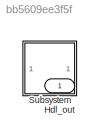
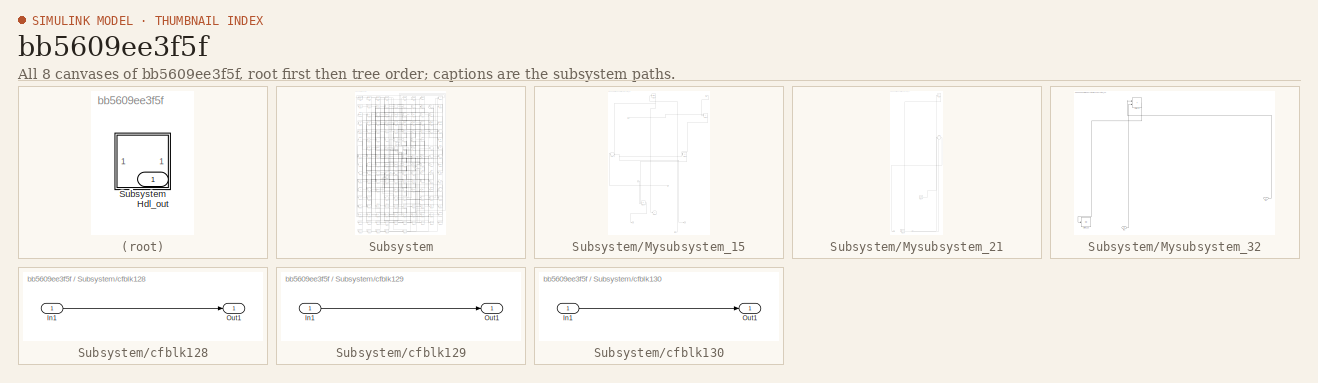
[diagram: thumbnail index - all 8 canvases of the model, root first then tree order]
MODEL slx_bb5609ee3f5f
KIND model
CONFIG AbsTol = auto
CONFIG EnableMultiTasking = off
CONFIG FixedStep = auto
CONFIG MaxStep = auto
CONFIG MinStep = auto
CONFIG RelTol = 1e-3
CONFIG SampleTimeConstraint = Unconstrained
CONFIG SolverName = VariableStepAuto
CONFIG StartTime = 0.0
CONFIG StopTime = 10.0
BLOCK [Outport] Hdl_out
  OutDataTypeStr = uint8
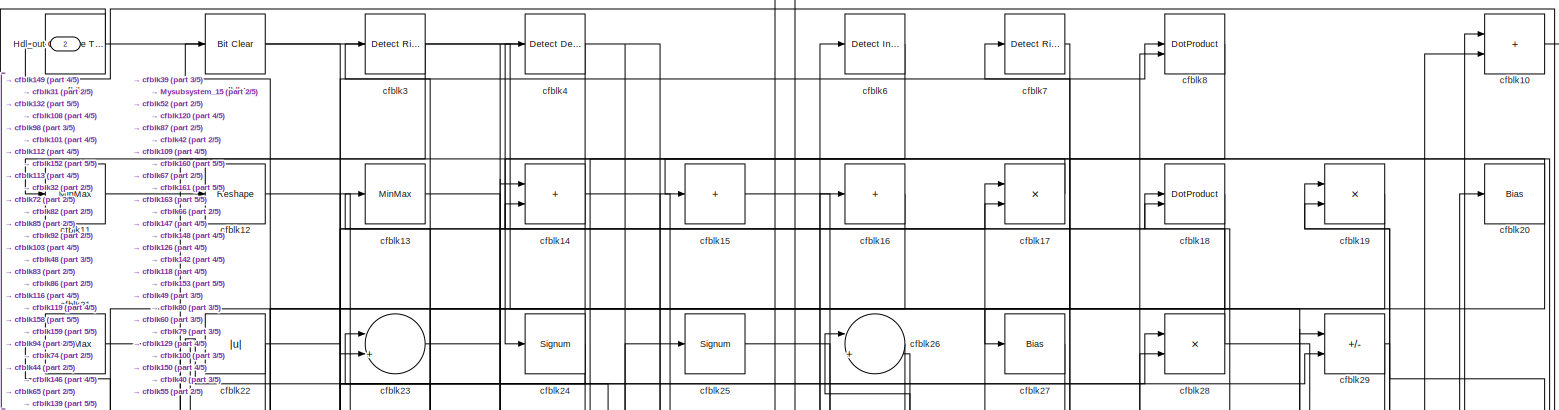
[diagram: Subsystem - part 1/5, full width, top band]
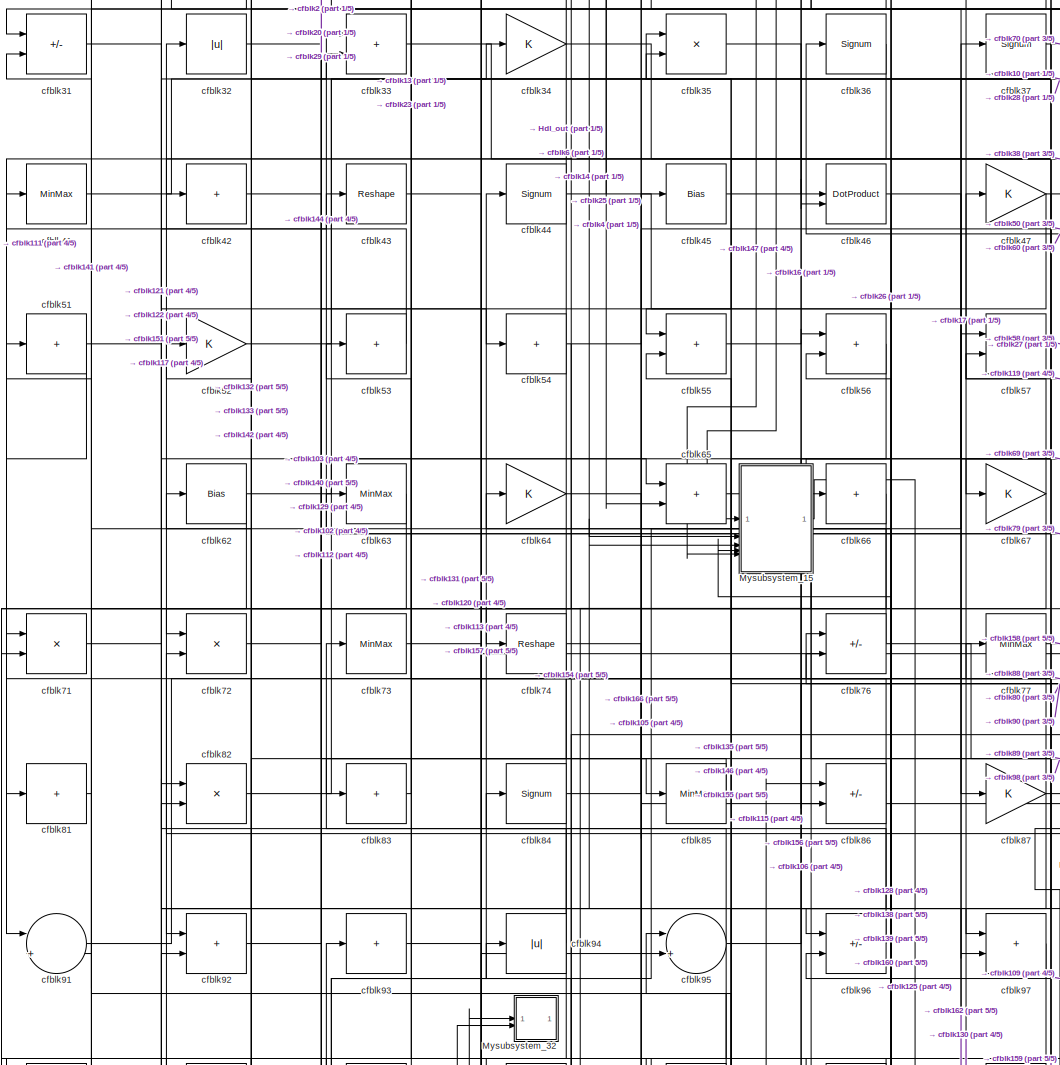
[diagram: Subsystem - part 2/5, central region]
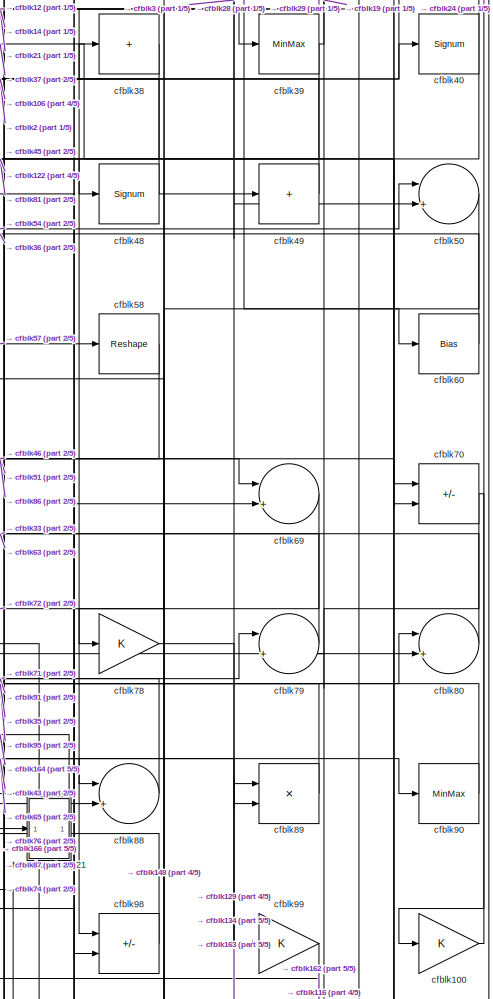
[diagram: Subsystem - part 3/5, middle right region]
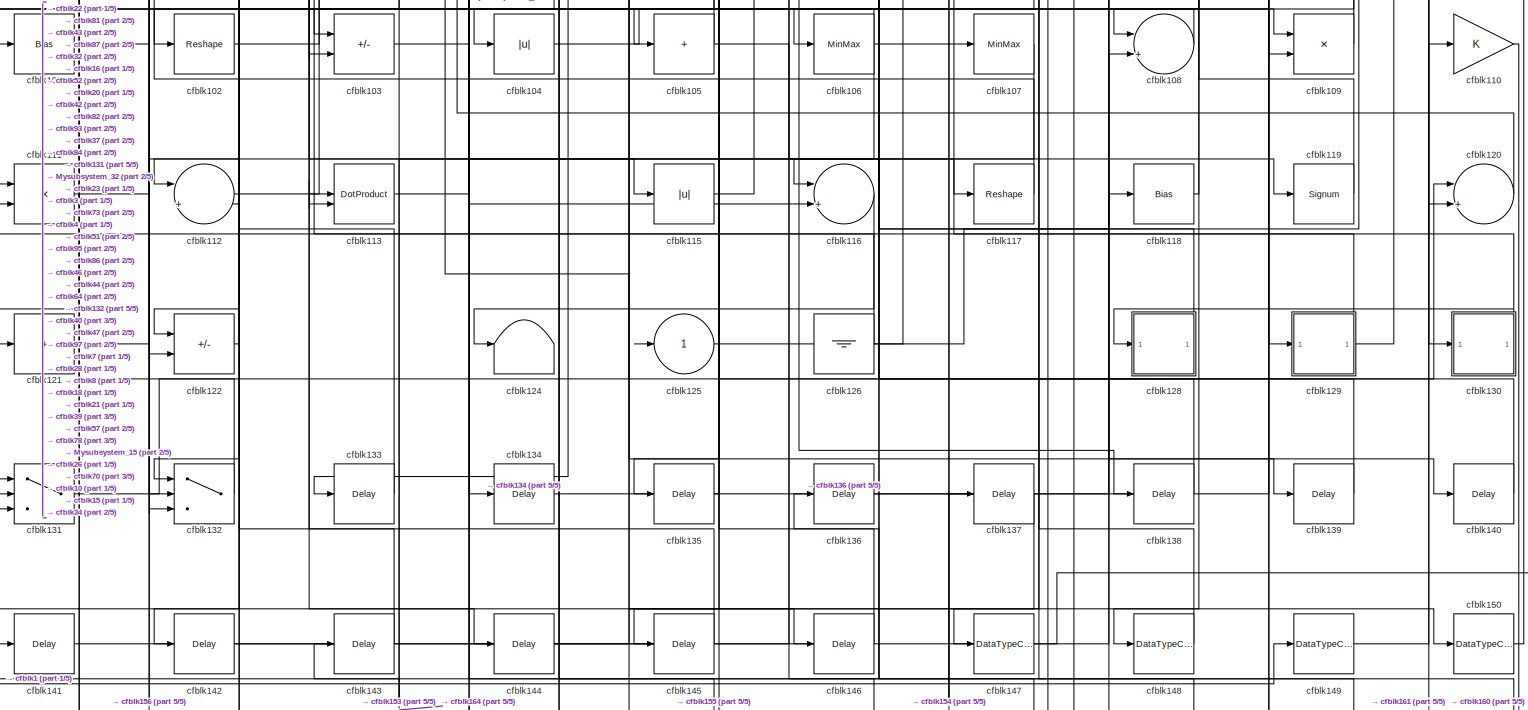
[diagram: Subsystem - part 4/5, full width, bottom band]
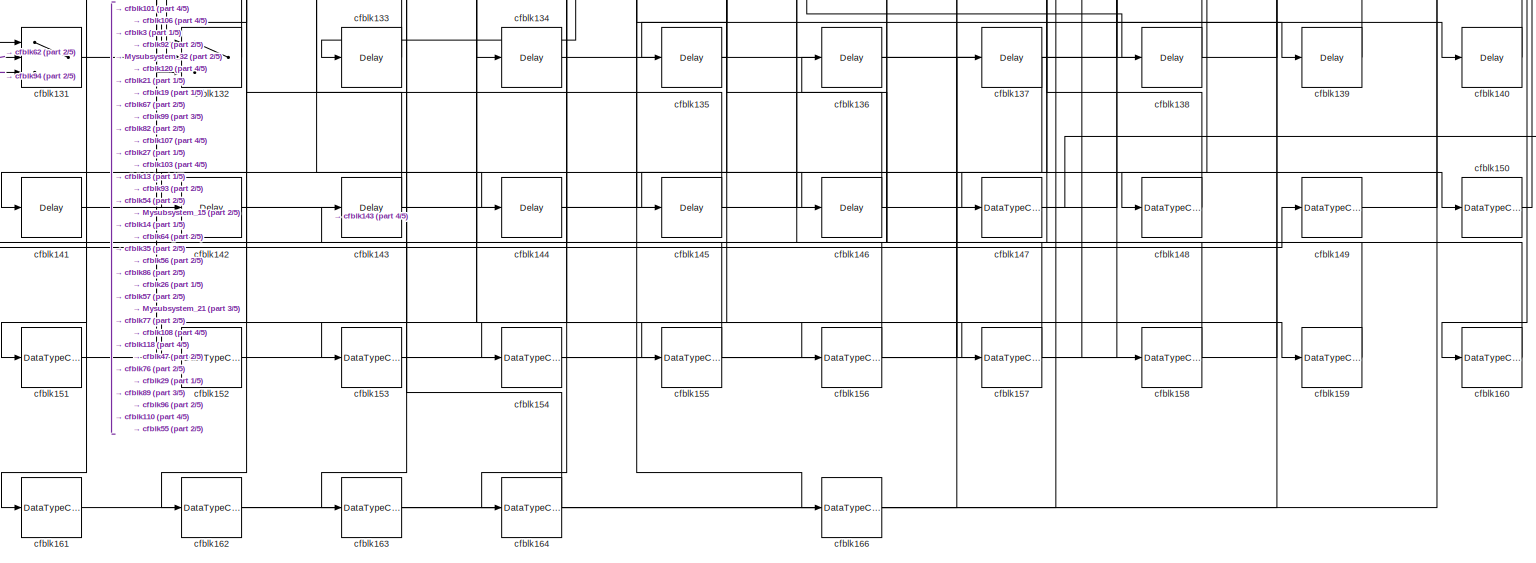
[diagram: Subsystem - part 5/5, full width, bottom band]
BLOCK [SubSystem] Subsystem
BLOCK [Outport] Subsystem/Hdl_out
  OutDataTypeStr = uint8
  Port = 2
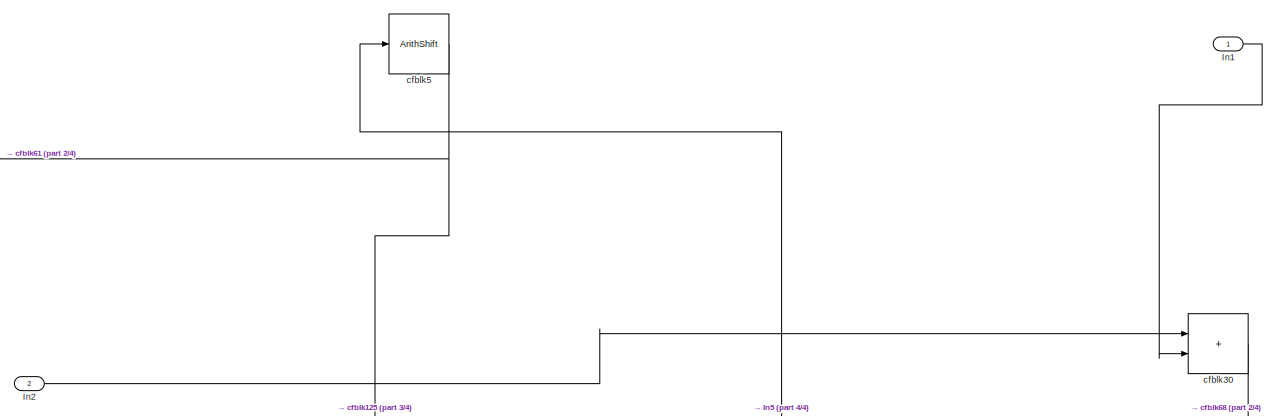
[diagram: Subsystem/Mysubsystem_15 - part 1/4, full width, top band]
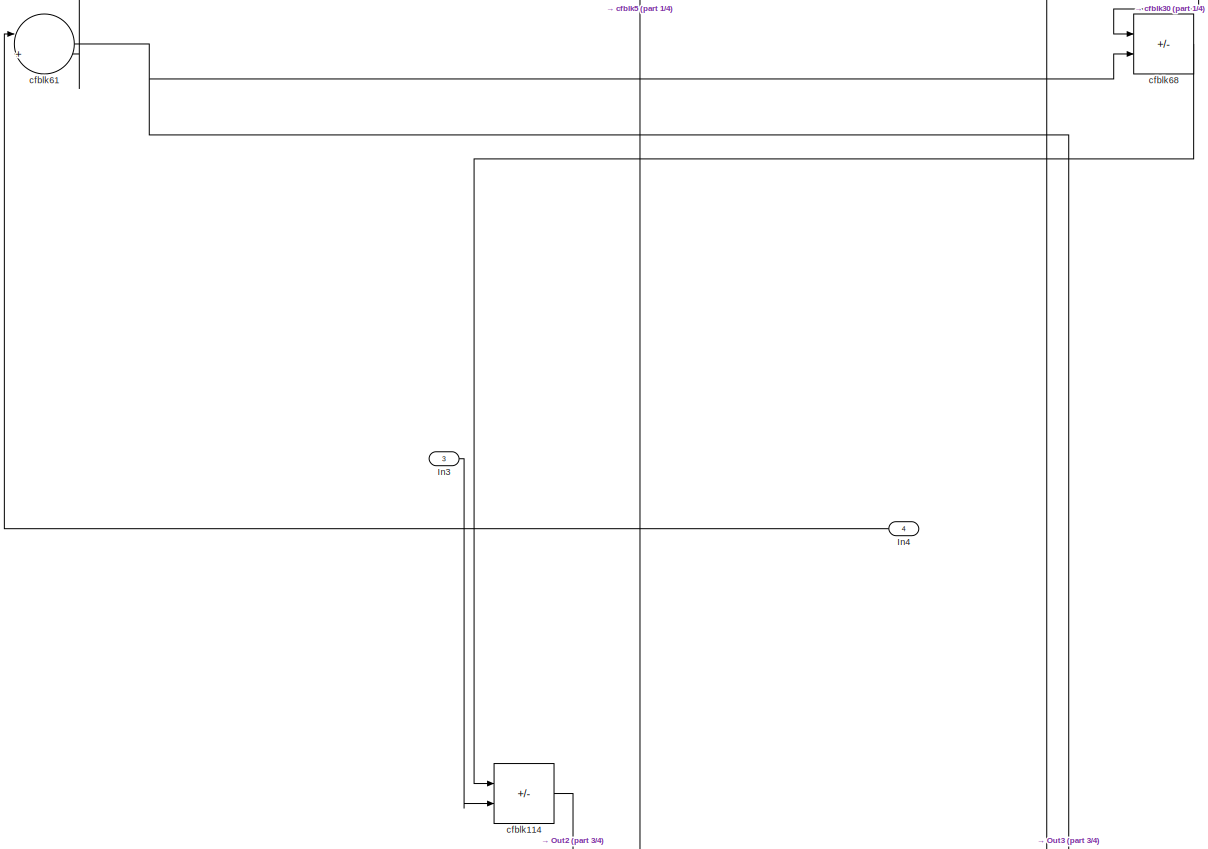
[diagram: Subsystem/Mysubsystem_15 - part 2/4, full width, middle band]
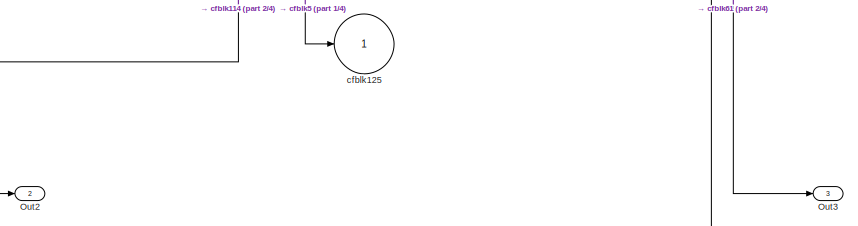
[diagram: Subsystem/Mysubsystem_15 - part 3/4, bottom center region]
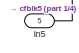
[diagram: Subsystem/Mysubsystem_15 - part 4/4, bottom center region]
BLOCK [SubSystem] Subsystem/Mysubsystem_15
  RTWFcnName = Mysubsystem_15
  RTWFcnNameOpts = User specified
  RTWFileNameOpts = Use function name
  RTWSystemCode = Reusable function
  TreatAsAtomicUnit = on
BLOCK [Inport] Subsystem/Mysubsystem_15/In1
BLOCK [Inport] Subsystem/Mysubsystem_15/In2
  Port = 2
BLOCK [Inport] Subsystem/Mysubsystem_15/In3
  Port = 3
BLOCK [Inport] Subsystem/Mysubsystem_15/In4
  Port = 4
BLOCK [Inport] Subsystem/Mysubsystem_15/In5
  Port = 5
BLOCK [Outport] Subsystem/Mysubsystem_15/Out2
  Port = 2
BLOCK [Outport] Subsystem/Mysubsystem_15/Out3
  Port = 3
BLOCK [Sum] Subsystem/Mysubsystem_15/cfblk114
  IconShape = rectangular
  Inputs = +-
BLOCK [Outport] Subsystem/Mysubsystem_15/cfblk125
  VectorParamsAs1DForOutWhenUnconnected = off
BLOCK [Sum] Subsystem/Mysubsystem_15/cfblk30
  IconShape = rectangular
BLOCK [ArithShift] Subsystem/Mysubsystem_15/cfblk5
  BitShiftNumber = 8
  InputPortMap = u0
BLOCK [Sum] Subsystem/Mysubsystem_15/cfblk61
  Inputs = |++
BLOCK [Sum] Subsystem/Mysubsystem_15/cfblk68
  IconShape = rectangular
  Inputs = +-
BLOCK [SubSystem] Subsystem/Mysubsystem_21
  RTWFcnName = Mysubsystem_21
  RTWFcnNameOpts = User specified
  RTWFileNameOpts = Use function name
  RTWSystemCode = Reusable function
  TreatAsAtomicUnit = on
BLOCK [Inport] Subsystem/Mysubsystem_21/In1
BLOCK [Outport] Subsystem/Mysubsystem_21/Out1
BLOCK [Reference] Subsystem/Mysubsystem_21/cfblk127  REF=hdlsllib/Sources/Counter
Free-Running
  SourceBlock = hdlsllib/Sources/Counter\nFree-Running
  SourceType = Counter Free-Running
BLOCK [DataTypeConversion] Subsystem/Mysubsystem_21/cfblk165
  OutDataTypeStr = uint8
  RndMeth = Floor
  SaturateOnIntegerOverflow = off
BLOCK [Sum] Subsystem/Mysubsystem_21/cfblk59
  Inputs = |++
BLOCK [Abs] Subsystem/Mysubsystem_21/cfblk9
  SaturateOnIntegerOverflow = off
BLOCK [SubSystem] Subsystem/Mysubsystem_32
  RTWFcnName = Mysubsystem_32
  RTWFcnNameOpts = User specified
  RTWFileNameOpts = Use function name
  RTWSystemCode = Reusable function
  TreatAsAtomicUnit = on
BLOCK [Inport] Subsystem/Mysubsystem_32/In1
BLOCK [Inport] Subsystem/Mysubsystem_32/In2
  Port = 2
BLOCK [Display] Subsystem/Mysubsystem_32/cfblk123
  Decimation = 1
BLOCK [Sum] Subsystem/Mysubsystem_32/cfblk75
  IconShape = rectangular
BLOCK [Reference] Subsystem/cfblk1  REF=hdlsllib/Logic and Bit
Operations/Compare
To Zero
  SourceBlock = hdlsllib/Logic and Bit\nOperations/Compare\nTo Zero
  SourceType = Compare To Zero
BLOCK [Sum] Subsystem/cfblk10
  IconShape = rectangular
  OutDataTypeStr = uint8
BLOCK [Gain] Subsystem/cfblk100
  OutDataTypeStr = uint8
BLOCK [Bias] Subsystem/cfblk101
  Bias = 0.0
  SaturateOnIntegerOverflow = off
BLOCK [Reshape] Subsystem/cfblk102
BLOCK [Sum] Subsystem/cfblk103
  IconShape = rectangular
  Inputs = +-
  OutDataTypeStr = uint8
BLOCK [Abs] Subsystem/cfblk104
  OutDataTypeStr = uint8
  SaturateOnIntegerOverflow = off
BLOCK [Sum] Subsystem/cfblk105
  IconShape = rectangular
  Inputs = +
  OutDataTypeStr = uint8
BLOCK [MinMax] Subsystem/cfblk106
  OutDataTypeStr = uint8
BLOCK [MinMax] Subsystem/cfblk107
  OutDataTypeStr = uint8
BLOCK [Sum] Subsystem/cfblk108
  Inputs = |++
  OutDataTypeStr = uint8
BLOCK [Product] Subsystem/cfblk109
  Inputs = */
  OutDataTypeStr = uint8
  RndMeth = Zero
  SaturateOnIntegerOverflow = on
BLOCK [MinMax] Subsystem/cfblk11
  OutDataTypeStr = uint8
BLOCK [Gain] Subsystem/cfblk110
  OutDataTypeStr = uint8
BLOCK [Product] Subsystem/cfblk111
  Inputs = */
  OutDataTypeStr = uint8
  RndMeth = Zero
  SaturateOnIntegerOverflow = on
BLOCK [Sum] Subsystem/cfblk112
  Inputs = |++
  OutDataTypeStr = uint8
BLOCK [DotProduct] Subsystem/cfblk113
  OutDataTypeStr = uint8
BLOCK [Abs] Subsystem/cfblk115
  OutDataTypeStr = uint8
  SaturateOnIntegerOverflow = off
BLOCK [Sum] Subsystem/cfblk116
  Inputs = |++
  OutDataTypeStr = uint8
BLOCK [Reshape] Subsystem/cfblk117
BLOCK [Bias] Subsystem/cfblk118
  Bias = 0.0
  SaturateOnIntegerOverflow = off
BLOCK [Signum] Subsystem/cfblk119
BLOCK [Reshape] Subsystem/cfblk12
BLOCK [Sum] Subsystem/cfblk120
  Inputs = |++
  OutDataTypeStr = uint8
BLOCK [Sum] Subsystem/cfblk121
  IconShape = rectangular
  Inputs = +
  OutDataTypeStr = uint8
BLOCK [Sum] Subsystem/cfblk122
  IconShape = rectangular
  Inputs = +-
  OutDataTypeStr = uint8
BLOCK [Terminator] Subsystem/cfblk124
BLOCK [Outport] Subsystem/cfblk125
  OutDataTypeStr = uint8
  VectorParamsAs1DForOutWhenUnconnected = off
BLOCK [Ground] Subsystem/cfblk126
BLOCK [SubSystem] Subsystem/cfblk128
  LibrarySourceBlock = hdlsllib/Ports &\nSubsystems/Subsystem
BLOCK [Inport] Subsystem/cfblk128/In1
BLOCK [Outport] Subsystem/cfblk128/Out1
BLOCK [SubSystem] Subsystem/cfblk129
  LibrarySourceBlock = hdlsllib/Ports &\nSubsystems/Subsystem
BLOCK [Inport] Subsystem/cfblk129/In1
BLOCK [Outport] Subsystem/cfblk129/Out1
BLOCK [MinMax] Subsystem/cfblk13
  OutDataTypeStr = uint8
BLOCK [SubSystem] Subsystem/cfblk130
  LibrarySourceBlock = hdlsllib/Ports &\nSubsystems/Subsystem
BLOCK [Inport] Subsystem/cfblk130/In1
BLOCK [Outport] Subsystem/cfblk130/Out1
BLOCK [Switch] Subsystem/cfblk131
  InputSameDT = off
  OutDataTypeStr = uint8
  SaturateOnIntegerOverflow = off
BLOCK [Switch] Subsystem/cfblk132
  InputSameDT = off
  OutDataTypeStr = uint8
  SaturateOnIntegerOverflow = off
BLOCK [Delay] Subsystem/cfblk133
  InputPortMap = u0
  SampleTime = 1
BLOCK [Delay] Subsystem/cfblk134
  InputPortMap = u0
  SampleTime = 1
BLOCK [Delay] Subsystem/cfblk135
  InputPortMap = u0
  SampleTime = 1
BLOCK [Delay] Subsystem/cfblk136
  InputPortMap = u0
  SampleTime = 1
BLOCK [Delay] Subsystem/cfblk137
  InputPortMap = u0
  SampleTime = 1
BLOCK [Delay] Subsystem/cfblk138
  InputPortMap = u0
  SampleTime = 1
BLOCK [Delay] Subsystem/cfblk139
  InputPortMap = u0
  SampleTime = 1
BLOCK [Sum] Subsystem/cfblk14
  IconShape = rectangular
  OutDataTypeStr = uint8
BLOCK [Delay] Subsystem/cfblk140
  InputPortMap = u0
  SampleTime = 1
BLOCK [Delay] Subsystem/cfblk141
  InputPortMap = u0
  SampleTime = 1
BLOCK [Delay] Subsystem/cfblk142
  InputPortMap = u0
  SampleTime = 1
BLOCK [Delay] Subsystem/cfblk143
  InputPortMap = u0
  SampleTime = 1
BLOCK [Delay] Subsystem/cfblk144
  InputPortMap = u0
  SampleTime = 1
BLOCK [Delay] Subsystem/cfblk145
  InputPortMap = u0
  SampleTime = 1
BLOCK [Delay] Subsystem/cfblk146
  InputPortMap = u0
  SampleTime = 1
BLOCK [DataTypeConversion] Subsystem/cfblk147
  OutDataTypeStr = uint8
  RndMeth = Floor
  SaturateOnIntegerOverflow = off
BLOCK [DataTypeConversion] Subsystem/cfblk148
  OutDataTypeStr = uint8
  RndMeth = Floor
  SaturateOnIntegerOverflow = off
BLOCK [DataTypeConversion] Subsystem/cfblk149
  OutDataTypeStr = uint8
  RndMeth = Floor
  SaturateOnIntegerOverflow = off
BLOCK [Sum] Subsystem/cfblk15
  IconShape = rectangular
  Inputs = +
  OutDataTypeStr = uint8
BLOCK [DataTypeConversion] Subsystem/cfblk150
  OutDataTypeStr = uint8
  RndMeth = Floor
  SaturateOnIntegerOverflow = off
BLOCK [DataTypeConversion] Subsystem/cfblk151
  OutDataTypeStr = uint8
  RndMeth = Floor
  SaturateOnIntegerOverflow = off
BLOCK [DataTypeConversion] Subsystem/cfblk152
  OutDataTypeStr = uint8
  RndMeth = Floor
  SaturateOnIntegerOverflow = off
BLOCK [DataTypeConversion] Subsystem/cfblk153
  OutDataTypeStr = uint8
  RndMeth = Floor
  SaturateOnIntegerOverflow = off
BLOCK [DataTypeConversion] Subsystem/cfblk154
  OutDataTypeStr = uint8
  RndMeth = Floor
  SaturateOnIntegerOverflow = off
BLOCK [DataTypeConversion] Subsystem/cfblk155
  OutDataTypeStr = uint8
  RndMeth = Floor
  SaturateOnIntegerOverflow = off
BLOCK [DataTypeConversion] Subsystem/cfblk156
  OutDataTypeStr = uint8
  RndMeth = Floor
  SaturateOnIntegerOverflow = off
BLOCK [DataTypeConversion] Subsystem/cfblk157
  OutDataTypeStr = uint8
  RndMeth = Floor
  SaturateOnIntegerOverflow = off
BLOCK [DataTypeConversion] Subsystem/cfblk158
  OutDataTypeStr = uint8
  RndMeth = Floor
  SaturateOnIntegerOverflow = off
BLOCK [DataTypeConversion] Subsystem/cfblk159
  OutDataTypeStr = uint8
  RndMeth = Floor
  SaturateOnIntegerOverflow = off
BLOCK [Sum] Subsystem/cfblk16
  IconShape = rectangular
  Inputs = +
  OutDataTypeStr = uint8
BLOCK [DataTypeConversion] Subsystem/cfblk160
  OutDataTypeStr = uint8
  RndMeth = Floor
  SaturateOnIntegerOverflow = off
BLOCK [DataTypeConversion] Subsystem/cfblk161
  OutDataTypeStr = uint8
  RndMeth = Floor
  SaturateOnIntegerOverflow = off
BLOCK [DataTypeConversion] Subsystem/cfblk162
  OutDataTypeStr = uint8
  RndMeth = Floor
  SaturateOnIntegerOverflow = off
BLOCK [DataTypeConversion] Subsystem/cfblk163
  OutDataTypeStr = uint8
  RndMeth = Floor
  SaturateOnIntegerOverflow = off
BLOCK [DataTypeConversion] Subsystem/cfblk164
  OutDataTypeStr = uint8
  RndMeth = Floor
  SaturateOnIntegerOverflow = off
BLOCK [DataTypeConversion] Subsystem/cfblk166
  OutDataTypeStr = uint8
  RndMeth = Floor
  SaturateOnIntegerOverflow = off
BLOCK [Product] Subsystem/cfblk17
  Inputs = */
  OutDataTypeStr = uint8
  RndMeth = Zero
  SaturateOnIntegerOverflow = on
BLOCK [DotProduct] Subsystem/cfblk18
  OutDataTypeStr = uint8
BLOCK [Product] Subsystem/cfblk19
  Inputs = */
  OutDataTypeStr = uint8
  RndMeth = Zero
  SaturateOnIntegerOverflow = on
BLOCK [Reference] Subsystem/cfblk2  REF=simulink/Logic and Bit
Operations/Bit Clear
  LibrarySourceBlock = hdlsllib/Logic and Bit\nOperations/Bit Clear
  SourceBlock = simulink/Logic and Bit\nOperations/Bit Clear
  SourceType = Bit Clear
BLOCK [Bias] Subsystem/cfblk20
  Bias = 0.0
  SaturateOnIntegerOverflow = off
BLOCK [MinMax] Subsystem/cfblk21
  OutDataTypeStr = uint8
BLOCK [Abs] Subsystem/cfblk22
  OutDataTypeStr = uint8
  SaturateOnIntegerOverflow = off
BLOCK [Sum] Subsystem/cfblk23
  Inputs = |++
  OutDataTypeStr = uint8
BLOCK [Signum] Subsystem/cfblk24
BLOCK [Signum] Subsystem/cfblk25
BLOCK [Sum] Subsystem/cfblk26
  Inputs = |++
  OutDataTypeStr = uint8
BLOCK [Bias] Subsystem/cfblk27
  Bias = 0.0
  SaturateOnIntegerOverflow = off
BLOCK [Product] Subsystem/cfblk28
  Inputs = */
  OutDataTypeStr = uint8
  RndMeth = Zero
  SaturateOnIntegerOverflow = on
BLOCK [Sum] Subsystem/cfblk29
  IconShape = rectangular
  Inputs = +-
  OutDataTypeStr = uint8
BLOCK [Reference] Subsystem/cfblk3  REF=hdlsllib/Logic and Bit
Operations/Detect Rise
Positive
  SourceBlock = hdlsllib/Logic and Bit\nOperations/Detect Rise\nPositive
  SourceType = Detect Rise Positive
BLOCK [Sum] Subsystem/cfblk31
  IconShape = rectangular
  Inputs = +-
  OutDataTypeStr = uint8
BLOCK [Abs] Subsystem/cfblk32
  OutDataTypeStr = uint8
  SaturateOnIntegerOverflow = off
BLOCK [Sum] Subsystem/cfblk33
  IconShape = rectangular
  OutDataTypeStr = uint8
BLOCK [Gain] Subsystem/cfblk34
  OutDataTypeStr = uint8
BLOCK [Product] Subsystem/cfblk35
  Inputs = */
  OutDataTypeStr = uint8
  RndMeth = Zero
  SaturateOnIntegerOverflow = on
BLOCK [Signum] Subsystem/cfblk36
BLOCK [Signum] Subsystem/cfblk37
BLOCK [Sum] Subsystem/cfblk38
  IconShape = rectangular
  Inputs = +
  OutDataTypeStr = uint8
BLOCK [MinMax] Subsystem/cfblk39
  OutDataTypeStr = uint8
BLOCK [Reference] Subsystem/cfblk4  REF=simulink/Logic and Bit
Operations/Detect
Decrease
  LibrarySourceBlock = hdlsllib/Logic and Bit\nOperations/Detect\nDecrease
  SourceBlock = simulink/Logic and Bit\nOperations/Detect\nDecrease
  SourceType = Detect Decrease
BLOCK [Signum] Subsystem/cfblk40
BLOCK [MinMax] Subsystem/cfblk41
  OutDataTypeStr = uint8
BLOCK [Sum] Subsystem/cfblk42
  IconShape = rectangular
  Inputs = +
  OutDataTypeStr = uint8
BLOCK [Reshape] Subsystem/cfblk43
BLOCK [Signum] Subsystem/cfblk44
BLOCK [Bias] Subsystem/cfblk45
  Bias = 0.0
  SaturateOnIntegerOverflow = off
BLOCK [DotProduct] Subsystem/cfblk46
  OutDataTypeStr = uint8
BLOCK [Gain] Subsystem/cfblk47
  OutDataTypeStr = uint8
BLOCK [Signum] Subsystem/cfblk48
BLOCK [Sum] Subsystem/cfblk49
  IconShape = rectangular
  Inputs = +
  OutDataTypeStr = uint8
BLOCK [Sum] Subsystem/cfblk50
  Inputs = |++
  OutDataTypeStr = uint8
BLOCK [Sum] Subsystem/cfblk51
  IconShape = rectangular
  Inputs = +
  OutDataTypeStr = uint8
BLOCK [Gain] Subsystem/cfblk52
  OutDataTypeStr = uint8
BLOCK [Sum] Subsystem/cfblk53
  IconShape = rectangular
  Inputs = +
  OutDataTypeStr = uint8
BLOCK [Sum] Subsystem/cfblk54
  IconShape = rectangular
  Inputs = +
  OutDataTypeStr = uint8
BLOCK [Sum] Subsystem/cfblk55
  IconShape = rectangular
  OutDataTypeStr = uint8
BLOCK [Sum] Subsystem/cfblk56
  IconShape = rectangular
  OutDataTypeStr = uint8
BLOCK [Sum] Subsystem/cfblk57
  IconShape = rectangular
  OutDataTypeStr = uint8
BLOCK [Reshape] Subsystem/cfblk58
BLOCK [Reference] Subsystem/cfblk6  REF=simulink/Logic and Bit
Operations/Detect
Increase
  LibrarySourceBlock = hdlsllib/Logic and Bit\nOperations/Detect\nIncrease
  SourceBlock = simulink/Logic and Bit\nOperations/Detect\nIncrease
  SourceType = Detect Increase
BLOCK [Bias] Subsystem/cfblk60
  Bias = 0.0
  SaturateOnIntegerOverflow = off
BLOCK [Bias] Subsystem/cfblk62
  Bias = 0.0
  SaturateOnIntegerOverflow = off
BLOCK [MinMax] Subsystem/cfblk63
  OutDataTypeStr = uint8
BLOCK [Gain] Subsystem/cfblk64
  OutDataTypeStr = uint8
BLOCK [Sum] Subsystem/cfblk65
  IconShape = rectangular
  OutDataTypeStr = uint8
BLOCK [Sum] Subsystem/cfblk66
  IconShape = rectangular
  Inputs = +
  OutDataTypeStr = uint8
BLOCK [Gain] Subsystem/cfblk67
  OutDataTypeStr = uint8
BLOCK [Sum] Subsystem/cfblk69
  Inputs = |++
  OutDataTypeStr = uint8
BLOCK [Reference] Subsystem/cfblk7  REF=hdlsllib/Logic and Bit
Operations/Detect Rise
Positive
  SourceBlock = hdlsllib/Logic and Bit\nOperations/Detect Rise\nPositive
  SourceType = Detect Rise Positive
BLOCK [Sum] Subsystem/cfblk70
  IconShape = rectangular
  Inputs = +-
  OutDataTypeStr = uint8
BLOCK [Product] Subsystem/cfblk71
  Inputs = */
  OutDataTypeStr = uint8
  RndMeth = Zero
  SaturateOnIntegerOverflow = on
BLOCK [Product] Subsystem/cfblk72
  Inputs = */
  OutDataTypeStr = uint8
  RndMeth = Zero
  SaturateOnIntegerOverflow = on
BLOCK [MinMax] Subsystem/cfblk73
  OutDataTypeStr = uint8
BLOCK [Reshape] Subsystem/cfblk74
BLOCK [Sum] Subsystem/cfblk76
  IconShape = rectangular
  Inputs = +-
  OutDataTypeStr = uint8
BLOCK [MinMax] Subsystem/cfblk77
  OutDataTypeStr = uint8
BLOCK [Gain] Subsystem/cfblk78
  OutDataTypeStr = uint8
BLOCK [Sum] Subsystem/cfblk79
  Inputs = |++
  OutDataTypeStr = uint8
BLOCK [DotProduct] Subsystem/cfblk8
  OutDataTypeStr = uint8
BLOCK [Sum] Subsystem/cfblk80
  Inputs = |++
  OutDataTypeStr = uint8
BLOCK [Sum] Subsystem/cfblk81
  IconShape = rectangular
  Inputs = +
  OutDataTypeStr = uint8
BLOCK [Product] Subsystem/cfblk82
  Inputs = */
  OutDataTypeStr = uint8
  RndMeth = Zero
  SaturateOnIntegerOverflow = on
BLOCK [Sum] Subsystem/cfblk83
  IconShape = rectangular
  Inputs = +
  OutDataTypeStr = uint8
BLOCK [Signum] Subsystem/cfblk84
BLOCK [MinMax] Subsystem/cfblk85
  OutDataTypeStr = uint8
BLOCK [Sum] Subsystem/cfblk86
  IconShape = rectangular
  Inputs = +-
  OutDataTypeStr = uint8
BLOCK [Gain] Subsystem/cfblk87
  OutDataTypeStr = uint8
BLOCK [Sum] Subsystem/cfblk88
  Inputs = |++
  OutDataTypeStr = uint8
BLOCK [Product] Subsystem/cfblk89
  Inputs = */
  OutDataTypeStr = uint8
  RndMeth = Zero
  SaturateOnIntegerOverflow = on
BLOCK [MinMax] Subsystem/cfblk90
  OutDataTypeStr = uint8
BLOCK [Sum] Subsystem/cfblk91
  Inputs = |++
  OutDataTypeStr = uint8
BLOCK [Sum] Subsystem/cfblk92
  IconShape = rectangular
  OutDataTypeStr = uint8
BLOCK [Sum] Subsystem/cfblk93
  IconShape = rectangular
  Inputs = +
  OutDataTypeStr = uint8
BLOCK [Abs] Subsystem/cfblk94
  OutDataTypeStr = uint8
  SaturateOnIntegerOverflow = off
BLOCK [Sum] Subsystem/cfblk95
  Inputs = |++
  OutDataTypeStr = uint8
BLOCK [Sum] Subsystem/cfblk96
  IconShape = rectangular
  Inputs = +-
  OutDataTypeStr = uint8
BLOCK [Sum] Subsystem/cfblk97
  IconShape = rectangular
  OutDataTypeStr = uint8
BLOCK [Sum] Subsystem/cfblk98
  IconShape = rectangular
  Inputs = +-
  OutDataTypeStr = uint8
BLOCK [Gain] Subsystem/cfblk99
  OutDataTypeStr = uint8
LINE Subsystem/Mysubsystem_15/In1:1 -> Subsystem/Mysubsystem_15/cfblk30:2
LINE Subsystem/Mysubsystem_15/In2:1 -> Subsystem/Mysubsystem_15/cfblk30:1
LINE Subsystem/Mysubsystem_15/In3:1 -> Subsystem/Mysubsystem_15/cfblk114:2
LINE Subsystem/Mysubsystem_15/In4:1 -> Subsystem/Mysubsystem_15/cfblk61:1
LINE Subsystem/Mysubsystem_15/In5:1 -> Subsystem/Mysubsystem_15/cfblk5:1
LINE Subsystem/Mysubsystem_15/cfblk114:1 -> Subsystem/Mysubsystem_15/Out2:1
LINE Subsystem/Mysubsystem_15/cfblk30:1 -> Subsystem/Mysubsystem_15/cfblk68:1
NET Subsystem/Mysubsystem_15/cfblk5:1 -> Subsystem/Mysubsystem_15/cfblk125:1, Subsystem/Mysubsystem_15/cfblk61:2
NET Subsystem/Mysubsystem_15/cfblk61:1 -> Subsystem/Mysubsystem_15/Out3:1, Subsystem/Mysubsystem_15/cfblk68:2
LINE Subsystem/Mysubsystem_15/cfblk68:1 -> Subsystem/Mysubsystem_15/cfblk114:1
LINE Subsystem/Mysubsystem_15:1 -> Subsystem/cfblk125:1
LINE Subsystem/Mysubsystem_15:2 -> Subsystem/cfblk133:1
LINE Subsystem/Mysubsystem_15:3 -> Subsystem/cfblk138:1
LINE Subsystem/Mysubsystem_21/In1:1 -> Subsystem/Mysubsystem_21/cfblk59:2
LINE Subsystem/Mysubsystem_21/cfblk127:1 -> Subsystem/Mysubsystem_21/cfblk9:1
LINE Subsystem/Mysubsystem_21/cfblk165:1 -> Subsystem/Mysubsystem_21/cfblk59:1
LINE Subsystem/Mysubsystem_21/cfblk59:1 -> Subsystem/Mysubsystem_21/Out1:1
LINE Subsystem/Mysubsystem_21/cfblk9:1 -> Subsystem/Mysubsystem_21/cfblk165:1
LINE Subsystem/Mysubsystem_21:1 -> Subsystem/cfblk164:1
LINE Subsystem/Mysubsystem_32/In1:1 -> Subsystem/Mysubsystem_32/cfblk75:1
LINE Subsystem/Mysubsystem_32/In2:1 -> Subsystem/Mysubsystem_32/cfblk75:2
LINE Subsystem/Mysubsystem_32/cfblk75:1 -> Subsystem/Mysubsystem_32/cfblk123:1
LINE Subsystem/cfblk100:1 -> Subsystem/cfblk24:1
LINE Subsystem/cfblk101:1 -> Subsystem/cfblk156:1
LINE Subsystem/cfblk102:1 -> Subsystem/cfblk84:1
LINE Subsystem/cfblk103:1 -> Subsystem/cfblk134:1
LINE Subsystem/cfblk104:1 -> Subsystem/cfblk109:1
NET Subsystem/cfblk105:1 -> Subsystem/cfblk117:1, Subsystem/cfblk145:1, Subsystem/cfblk51:1
NET Subsystem/cfblk106:1 -> Subsystem/cfblk104:1, Subsystem/cfblk132:2, Subsystem/cfblk40:1
LINE Subsystem/cfblk107:1 -> Subsystem/cfblk153:1
LINE Subsystem/cfblk108:1 -> Subsystem/cfblk102:1
NET Subsystem/cfblk109:1 -> Subsystem/Mysubsystem_15:4, Subsystem/cfblk26:2
LINE Subsystem/cfblk10:1 -> Subsystem/Mysubsystem_15:1
LINE Subsystem/cfblk110:1 -> Subsystem/cfblk160:1
LINE Subsystem/cfblk111:1 -> Subsystem/cfblk43:1
LINE Subsystem/cfblk112:1 -> Subsystem/cfblk37:1
LINE Subsystem/cfblk113:1 -> Subsystem/cfblk95:2
LINE Subsystem/cfblk115:1 -> Subsystem/cfblk86:1
LINE Subsystem/cfblk116:1 -> Subsystem/cfblk124:1
LINE Subsystem/cfblk117:1 -> Subsystem/cfblk32:1
LINE Subsystem/cfblk118:1 -> Subsystem/cfblk18:1
LINE Subsystem/cfblk119:1 -> Subsystem/cfblk57:2
LINE Subsystem/cfblk11:1 -> Subsystem/cfblk12:1
LINE Subsystem/cfblk120:1 -> Subsystem/Mysubsystem_32:1
LINE Subsystem/cfblk121:1 -> Subsystem/cfblk82:2
LINE Subsystem/cfblk122:1 -> Subsystem/cfblk52:1
NET Subsystem/cfblk126:1 -> Subsystem/cfblk111:1, Subsystem/cfblk28:2
LINE Subsystem/cfblk128/In1:1 -> Subsystem/cfblk128/Out1:1
LINE Subsystem/cfblk128:1 -> Subsystem/cfblk64:1
LINE Subsystem/cfblk129/In1:1 -> Subsystem/cfblk129/Out1:1
NET Subsystem/cfblk129:1 -> Subsystem/cfblk10:2, Subsystem/cfblk93:1
NET Subsystem/cfblk12:1 -> Subsystem/cfblk23:2, Subsystem/cfblk48:1
LINE Subsystem/cfblk130/In1:1 -> Subsystem/cfblk130/Out1:1
NET Subsystem/cfblk130:1 -> Subsystem/cfblk128:1, Subsystem/cfblk47:1
NET Subsystem/cfblk131:1 -> Subsystem/Mysubsystem_32:2, Subsystem/cfblk120:1
LINE Subsystem/cfblk132:1 -> Subsystem/cfblk21:1
LINE Subsystem/cfblk133:1 -> Subsystem/cfblk82:1
LINE Subsystem/cfblk134:1 -> Subsystem/cfblk89:1
LINE Subsystem/cfblk135:1 -> Subsystem/cfblk35:2
LINE Subsystem/cfblk136:1 -> Subsystem/cfblk108:2
LINE Subsystem/cfblk137:1 -> Subsystem/cfblk151:1
LINE Subsystem/cfblk138:1 -> Subsystem/cfblk76:2
LINE Subsystem/cfblk139:1 -> Subsystem/cfblk96:2
LINE Subsystem/cfblk13:1 -> Subsystem/cfblk159:1
LINE Subsystem/cfblk140:1 -> Subsystem/cfblk55:2
LINE Subsystem/cfblk141:1 -> Subsystem/cfblk46:1
LINE Subsystem/cfblk142:1 -> Subsystem/cfblk8:2
LINE Subsystem/cfblk143:1 -> Subsystem/cfblk113:1
LINE Subsystem/cfblk144:1 -> Subsystem/cfblk150:1
LINE Subsystem/cfblk145:1 -> Subsystem/cfblk112:2
LINE Subsystem/cfblk146:1 -> Subsystem/cfblk95:1
LINE Subsystem/cfblk147:1 -> Subsystem/Mysubsystem_15:5
LINE Subsystem/cfblk148:1 -> Subsystem/cfblk7:1
LINE Subsystem/cfblk149:1 -> Subsystem/cfblk20:1
NET Subsystem/cfblk14:1 -> Subsystem/cfblk139:1, Subsystem/cfblk39:1
LINE Subsystem/cfblk150:1 -> Subsystem/cfblk1:1
LINE Subsystem/cfblk151:1 -> Subsystem/cfblk92:2
LINE Subsystem/cfblk152:1 -> Subsystem/cfblk137:1
LINE Subsystem/cfblk153:1 -> Subsystem/cfblk29:1
LINE Subsystem/cfblk154:1 -> Subsystem/cfblk107:1
NET Subsystem/cfblk155:1 -> Subsystem/cfblk118:1, Subsystem/cfblk131:1
LINE Subsystem/cfblk156:1 -> Subsystem/cfblk56:1
LINE Subsystem/cfblk157:1 -> Subsystem/cfblk56:2
NET Subsystem/cfblk158:1 -> Subsystem/cfblk136:1, Subsystem/cfblk14:1
LINE Subsystem/cfblk159:1 -> Subsystem/cfblk77:1
LINE Subsystem/cfblk15:1 -> Subsystem/cfblk120:2
NET Subsystem/cfblk160:1 -> Subsystem/cfblk26:1, Subsystem/cfblk94:1
LINE Subsystem/cfblk161:1 -> Subsystem/cfblk110:1
LINE Subsystem/cfblk162:1 -> Subsystem/cfblk57:1
LINE Subsystem/cfblk163:1 -> Subsystem/cfblk99:1
LINE Subsystem/cfblk164:1 -> Subsystem/cfblk143:1
LINE Subsystem/cfblk166:1 -> Subsystem/Mysubsystem_21:1
LINE Subsystem/cfblk16:1 -> Subsystem/cfblk112:1
LINE Subsystem/cfblk17:1 -> Subsystem/cfblk15:1
LINE Subsystem/cfblk18:1 -> Subsystem/cfblk103:1
LINE Subsystem/cfblk19:1 -> Subsystem/cfblk152:1
LINE Subsystem/cfblk1:1 -> Subsystem/cfblk149:1
NET Subsystem/cfblk20:1 -> Subsystem/cfblk113:2, Subsystem/cfblk11:1, Subsystem/cfblk31:1
NET Subsystem/cfblk21:1 -> Subsystem/cfblk108:1, Subsystem/cfblk98:2
NET Subsystem/cfblk22:1 -> Subsystem/cfblk101:1, Subsystem/cfblk8:1
NET Subsystem/cfblk23:1 -> Subsystem/cfblk119:1, Subsystem/cfblk18:2
LINE Subsystem/cfblk24:1 -> Subsystem/cfblk22:1
LINE Subsystem/cfblk25:1 -> Subsystem/cfblk87:1
LINE Subsystem/cfblk26:1 -> Subsystem/cfblk42:1
NET Subsystem/cfblk27:1 -> Subsystem/cfblk161:1, Subsystem/cfblk163:1, Subsystem/cfblk66:1
NET Subsystem/cfblk28:1 -> Subsystem/cfblk4:1, Subsystem/cfblk60:1
NET Subsystem/cfblk29:1 -> Subsystem/cfblk67:1, Subsystem/cfblk79:2
LINE Subsystem/cfblk2:1 -> Subsystem/cfblk85:1
LINE Subsystem/cfblk31:1 -> Subsystem/cfblk54:1
NET Subsystem/cfblk32:1 -> Subsystem/Mysubsystem_15:2, Subsystem/cfblk14:2
LINE Subsystem/cfblk33:1 -> Subsystem/cfblk88:1
LINE Subsystem/cfblk34:1 -> Subsystem/cfblk130:1
LINE Subsystem/cfblk35:1 -> Subsystem/cfblk46:2
LINE Subsystem/cfblk36:1 -> Subsystem/cfblk55:1
LINE Subsystem/cfblk37:1 -> Subsystem/cfblk70:1
LINE Subsystem/cfblk38:1 -> Subsystem/cfblk81:1
NET Subsystem/cfblk39:1 -> Subsystem/cfblk148:1, Subsystem/cfblk19:1
NET Subsystem/cfblk3:1 -> Subsystem/cfblk116:2, Subsystem/cfblk132:3, Subsystem/cfblk49:1, Subsystem/cfblk80:2
NET Subsystem/cfblk40:1 -> Subsystem/cfblk122:1, Subsystem/cfblk19:2
LINE Subsystem/cfblk41:1 -> Subsystem/cfblk33:2
LINE Subsystem/cfblk42:1 -> Subsystem/cfblk144:1
LINE Subsystem/cfblk43:1 -> Subsystem/cfblk89:2
NET Subsystem/cfblk44:1 -> Subsystem/cfblk106:1, Subsystem/cfblk25:1
LINE Subsystem/cfblk45:1 -> Subsystem/cfblk38:1
NET Subsystem/cfblk46:1 -> Subsystem/cfblk70:2, Subsystem/cfblk96:1
NET Subsystem/cfblk47:1 -> Subsystem/cfblk103:2, Subsystem/cfblk140:1, Subsystem/cfblk97:1
NET Subsystem/cfblk48:1 -> Subsystem/cfblk3:1, Subsystem/cfblk50:2
LINE Subsystem/cfblk49:1 -> Subsystem/cfblk2:1
NET Subsystem/cfblk4:1 -> Subsystem/cfblk146:1, Subsystem/cfblk65:2
LINE Subsystem/cfblk50:1 -> Subsystem/cfblk78:1
NET Subsystem/cfblk51:1 -> Subsystem/cfblk69:1, Subsystem/cfblk91:1, Subsystem/cfblk97:2
LINE Subsystem/cfblk52:1 -> Subsystem/cfblk6:1
LINE Subsystem/cfblk53:1 -> Subsystem/cfblk41:1
NET Subsystem/cfblk54:1 -> Subsystem/cfblk154:1, Subsystem/cfblk50:1
LINE Subsystem/cfblk55:1 -> Subsystem/cfblk16:1
LINE Subsystem/cfblk56:1 -> Subsystem/cfblk155:1
LINE Subsystem/cfblk57:1 -> Subsystem/cfblk58:1
LINE Subsystem/cfblk58:1 -> Subsystem/cfblk86:2
LINE Subsystem/cfblk60:1 -> Subsystem/cfblk36:1
NET Subsystem/cfblk62:1 -> Subsystem/cfblk131:2, Subsystem/cfblk65:1
LINE Subsystem/cfblk63:1 -> Subsystem/cfblk91:2
LINE Subsystem/cfblk64:1 -> Subsystem/cfblk166:1
LINE Subsystem/cfblk65:1 -> Subsystem/cfblk98:1
LINE Subsystem/cfblk66:1 -> Subsystem/cfblk71:2
NET Subsystem/cfblk67:1 -> Subsystem/cfblk132:1, Subsystem/cfblk17:1
LINE Subsystem/cfblk69:1 -> Subsystem/cfblk72:1
LINE Subsystem/cfblk6:1 -> Subsystem/cfblk74:1
NET Subsystem/cfblk70:1 -> Subsystem/cfblk100:1, Subsystem/cfblk116:1
LINE Subsystem/cfblk71:1 -> Subsystem/cfblk34:1
LINE Subsystem/cfblk72:1 -> Subsystem/cfblk17:2
NET Subsystem/cfblk73:1 -> Subsystem/cfblk105:1, Subsystem/cfblk109:2
NET Subsystem/cfblk74:1 -> Subsystem/cfblk88:2, Subsystem/cfblk92:1
NET Subsystem/cfblk76:1 -> Subsystem/cfblk31:2, Subsystem/cfblk90:1
LINE Subsystem/cfblk77:1 -> Subsystem/cfblk158:1
LINE Subsystem/cfblk78:1 -> Subsystem/cfblk129:1
LINE Subsystem/cfblk79:1 -> Subsystem/cfblk33:1
LINE Subsystem/cfblk7:1 -> Subsystem/cfblk147:1
LINE Subsystem/cfblk80:1 -> Subsystem/cfblk63:1
LINE Subsystem/cfblk81:1 -> Subsystem/cfblk121:1
NET Subsystem/cfblk82:1 -> Subsystem/cfblk10:1, Subsystem/cfblk115:1, Subsystem/cfblk28:1
LINE Subsystem/cfblk83:1 -> Subsystem/cfblk23:1
LINE Subsystem/cfblk84:1 -> Subsystem/cfblk45:1
LINE Subsystem/cfblk85:1 -> Subsystem/cfblk83:1
NET Subsystem/cfblk86:1 -> Subsystem/cfblk135:1, Subsystem/cfblk13:1
NET Subsystem/cfblk87:1 -> Subsystem/Mysubsystem_15:3, Subsystem/cfblk122:2, Subsystem/cfblk53:1, Subsystem/cfblk69:2
LINE Subsystem/cfblk88:1 -> Subsystem/cfblk71:1
LINE Subsystem/cfblk89:1 -> Subsystem/cfblk76:1
LINE Subsystem/cfblk8:1 -> Subsystem/cfblk27:1
LINE Subsystem/cfblk90:1 -> Subsystem/cfblk35:1
LINE Subsystem/cfblk91:1 -> Subsystem/cfblk79:1
LINE Subsystem/cfblk92:1 -> Subsystem/cfblk29:2
LINE Subsystem/cfblk93:1 -> Subsystem/cfblk157:1
NET Subsystem/cfblk94:1 -> Subsystem/Hdl_out:1, Subsystem/cfblk131:3, Subsystem/cfblk73:1
NET Subsystem/cfblk95:1 -> Subsystem/cfblk111:2, Subsystem/cfblk62:1, Subsystem/cfblk80:1
LINE Subsystem/cfblk96:1 -> Subsystem/cfblk44:1
NET Subsystem/cfblk97:1 -> Subsystem/cfblk141:1, Subsystem/cfblk142:1
LINE Subsystem/cfblk98:1 -> Subsystem/cfblk72:2
LINE Subsystem/cfblk99:1 -> Subsystem/cfblk162:1
note: NET lines group one-source signal fan-out (src -> all destinations, sorted); 1:1 wires keep LINE
